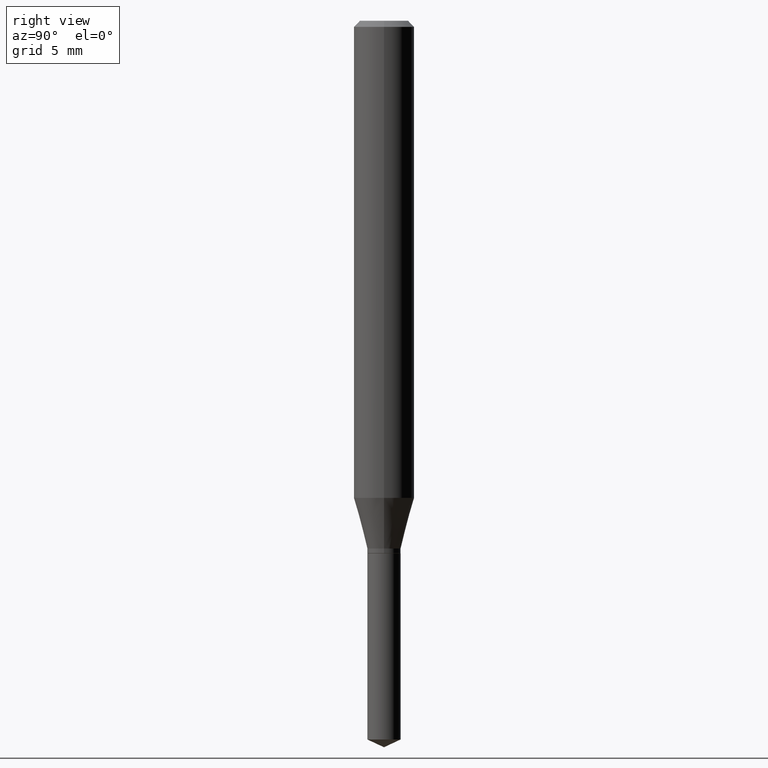
[diagram: clean part render]
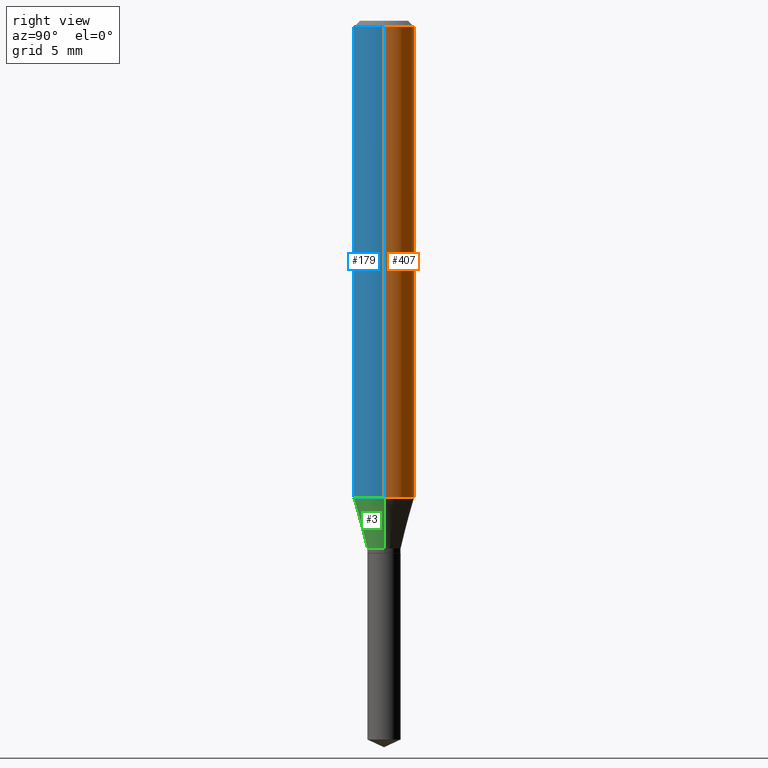
[diagram: same view with three faces highlighted in distinct colors, each labeled with its STEP entity id]
A machine part, right view with three faces highlighted in distinct colors.
Their STEP definitions:

[orange] entity #407 — the highlighted cylindrical surface (edge-blend (fillet) strip) has radius 1.5875 mm, axis along (-0, 0, 1).
#2 = DIRECTION ( 'NONE',  ( -2.445468806185136597E-29, 3.491481338843145583E-15, 1.000000000000000000 ) ) ;
#18 = CARTESIAN_POINT ( 'NONE',  ( 3.056836007731440977E-31, -4.364351673553961068E-17, -0.01250000000000008223 ) ) ;
#28 = VERTEX_POINT ( 'NONE', #96 ) ;
#50 = VECTOR ( 'NONE', #119, 39.37007874015748143 ) ;
#56 = LINE ( 'NONE', #89, #50 ) ;
#81 = EDGE_CURVE ( 'NONE', #372, #363, #314, .T. ) ;
#89 = CARTESIAN_POINT ( 'NONE',  ( 0.06250000000000005551, -4.364351673553921131E-16, 3.047610484872463023E-30 ) ) ;
#96 = CARTESIAN_POINT ( 'NONE',  ( -0.06250000000000000000, -1.297314995839260696E-15, -0.01250000000000008223 ) ) ;
#104 = ORIENTED_EDGE ( 'NONE', *, *, #330, .F. ) ;
#119 = DIRECTION ( 'NONE',  ( -2.445468806185136877E-29, 3.491481338843145188E-15, 1.000000000000000000 ) ) ;
#127 = CARTESIAN_POINT ( 'NONE',  ( -0.06250000000000005551, 4.440892098500630106E-16, -3.074334431409318916E-30 ) ) ;
#157 = ORIENTED_EDGE ( 'NONE', *, *, #316, .F. ) ;
#168 = DIRECTION ( 'NONE',  ( 1.000000000000000000, -6.982962677686264344E-15, 0.000000000000000000 ) ) ;
#177 = DIRECTION ( 'NONE',  ( 1.000000000000000000, -6.982962677686266711E-15, 0.000000000000000000 ) ) ;
#191 = CARTESIAN_POINT ( 'NONE',  ( -0.06250000000000012490, -2.995075684793045236E-15, -0.9850159748476928767 ) ) ;
#192 = CARTESIAN_POINT ( 'NONE',  ( 0.06250000000000012490, -3.875600061998501888E-15, -0.9850159748476928767 ) ) ;
#220 = ORIENTED_EDGE ( 'NONE', *, *, #445, .T. ) ;
#230 = LINE ( 'NONE', #127, #473 ) ;
#256 = CARTESIAN_POINT ( 'NONE',  ( 2.408825840084076168E-29, -3.439164894643109430E-15, -0.9850159748476928767 ) ) ;
#261 = AXIS2_PLACEMENT_3D ( 'NONE', #18, #318, #177 ) ;
#272 = DIRECTION ( 'NONE',  ( -2.445468806185136597E-29, 3.491481338843145583E-15, 1.000000000000000000 ) ) ;
#275 = DIRECTION ( 'NONE',  ( -2.445468806185136877E-29, 3.491481338843145188E-15, 1.000000000000000000 ) ) ;
#282 = CARTESIAN_POINT ( 'NONE',  ( 0.06250000000000000000, -4.800786840909312308E-16, -0.01250000000000008223 ) ) ;
#286 = AXIS2_PLACEMENT_3D ( 'NONE', #456, #272, #484 ) ;
#302 = FACE_OUTER_BOUND ( 'NONE', #450, .T. ) ;
#305 = CYLINDRICAL_SURFACE ( 'NONE', #286, 0.06250000000000005551 ) ;
#314 = CIRCLE ( 'NONE', #389, 0.06250000000000012490 ) ;
#316 = EDGE_CURVE ( 'NONE', #320, #28, #404, .T. ) ;
#318 = DIRECTION ( 'NONE',  ( -2.445468806185136597E-29, 3.491481338843145583E-15, 1.000000000000000000 ) ) ;
#320 = VERTEX_POINT ( 'NONE', #282 ) ;
#330 = EDGE_CURVE ( 'NONE', #372, #320, #56, .T. ) ;
#363 = VERTEX_POINT ( 'NONE', #191 ) ;
#372 = VERTEX_POINT ( 'NONE', #192 ) ;
#389 = AXIS2_PLACEMENT_3D ( 'NONE', #256, #2, #168 ) ;
#404 = CIRCLE ( 'NONE', #261, 0.06250000000000000000 ) ;
#407 = ADVANCED_FACE ( 'NONE', ( #302 ), #305, .T. ) ;
#445 = EDGE_CURVE ( 'NONE', #363, #28, #230, .T. ) ;
#450 = EDGE_LOOP ( 'NONE', ( #485, #220, #157, #104 ) ) ;
#456 = CARTESIAN_POINT ( 'NONE',  ( 0.000000000000000000, 0.000000000000000000, 0.000000000000000000 ) ) ;
#473 = VECTOR ( 'NONE', #275, 39.37007874015748143 ) ;
#484 = DIRECTION ( 'NONE',  ( 1.000000000000000000, -6.982962677686267499E-15, 4.876176775795936353E-29 ) ) ;
#485 = ORIENTED_EDGE ( 'NONE', *, *, #81, .T. ) ;

[blue] entity #179 — the highlighted cylindrical surface (edge-blend (fillet) strip) has radius 1.5875 mm, axis along (-0, 0, 1).
#26 = FACE_OUTER_BOUND ( 'NONE', #167, .T. ) ;
#28 = VERTEX_POINT ( 'NONE', #96 ) ;
#33 = DIRECTION ( 'NONE',  ( -2.445468806185136597E-29, 3.491481338843145583E-15, 1.000000000000000000 ) ) ;
#50 = VECTOR ( 'NONE', #119, 39.37007874015748143 ) ;
#52 = EDGE_CURVE ( 'NONE', #363, #372, #356, .T. ) ;
#56 = LINE ( 'NONE', #89, #50 ) ;
#65 = ORIENTED_EDGE ( 'NONE', *, *, #445, .F. ) ;
#89 = CARTESIAN_POINT ( 'NONE',  ( 0.06250000000000005551, -4.364351673553921131E-16, 3.047610484872463023E-30 ) ) ;
#96 = CARTESIAN_POINT ( 'NONE',  ( -0.06250000000000000000, -1.297314995839260696E-15, -0.01250000000000008223 ) ) ;
#119 = DIRECTION ( 'NONE',  ( -2.445468806185136877E-29, 3.491481338843145188E-15, 1.000000000000000000 ) ) ;
#125 = AXIS2_PLACEMENT_3D ( 'NONE', #284, #329, #182 ) ;
#127 = CARTESIAN_POINT ( 'NONE',  ( -0.06250000000000005551, 4.440892098500630106E-16, -3.074334431409318916E-30 ) ) ;
#150 = AXIS2_PLACEMENT_3D ( 'NONE', #259, #33, #299 ) ;
#152 = ORIENTED_EDGE ( 'NONE', *, *, #330, .T. ) ;
#167 = EDGE_LOOP ( 'NONE', ( #65, #298, #152, #227 ) ) ;
#179 = ADVANCED_FACE ( 'NONE', ( #26 ), #420, .T. ) ;
#182 = DIRECTION ( 'NONE',  ( 1.000000000000000000, -6.982962677686264344E-15, 0.000000000000000000 ) ) ;
#191 = CARTESIAN_POINT ( 'NONE',  ( -0.06250000000000012490, -2.995075684793045236E-15, -0.9850159748476928767 ) ) ;
#192 = CARTESIAN_POINT ( 'NONE',  ( 0.06250000000000012490, -3.875600061998501888E-15, -0.9850159748476928767 ) ) ;
#227 = ORIENTED_EDGE ( 'NONE', *, *, #371, .F. ) ;
#230 = LINE ( 'NONE', #127, #473 ) ;
#243 = CARTESIAN_POINT ( 'NONE',  ( 0.000000000000000000, 0.000000000000000000, 0.000000000000000000 ) ) ;
#259 = CARTESIAN_POINT ( 'NONE',  ( 3.056836007731440977E-31, -4.364351673553961068E-17, -0.01250000000000008223 ) ) ;
#275 = DIRECTION ( 'NONE',  ( -2.445468806185136877E-29, 3.491481338843145188E-15, 1.000000000000000000 ) ) ;
#282 = CARTESIAN_POINT ( 'NONE',  ( 0.06250000000000000000, -4.800786840909312308E-16, -0.01250000000000008223 ) ) ;
#284 = CARTESIAN_POINT ( 'NONE',  ( 2.408825840084076168E-29, -3.439164894643109430E-15, -0.9850159748476928767 ) ) ;
#298 = ORIENTED_EDGE ( 'NONE', *, *, #52, .T. ) ;
#299 = DIRECTION ( 'NONE',  ( 1.000000000000000000, -6.982962677686266711E-15, 0.000000000000000000 ) ) ;
#300 = AXIS2_PLACEMENT_3D ( 'NONE', #243, #465, #307 ) ;
#307 = DIRECTION ( 'NONE',  ( 1.000000000000000000, -6.982962677686267499E-15, 4.876176775795936353E-29 ) ) ;
#320 = VERTEX_POINT ( 'NONE', #282 ) ;
#329 = DIRECTION ( 'NONE',  ( -2.445468806185136597E-29, 3.491481338843145583E-15, 1.000000000000000000 ) ) ;
#330 = EDGE_CURVE ( 'NONE', #372, #320, #56, .T. ) ;
#356 = CIRCLE ( 'NONE', #125, 0.06250000000000012490 ) ;
#363 = VERTEX_POINT ( 'NONE', #191 ) ;
#371 = EDGE_CURVE ( 'NONE', #28, #320, #396, .T. ) ;
#372 = VERTEX_POINT ( 'NONE', #192 ) ;
#396 = CIRCLE ( 'NONE', #150, 0.06250000000000000000 ) ;
#420 = CYLINDRICAL_SURFACE ( 'NONE', #300, 0.06250000000000005551 ) ;
#445 = EDGE_CURVE ( 'NONE', #363, #28, #230, .T. ) ;
#465 = DIRECTION ( 'NONE',  ( -2.445468806185136597E-29, 3.491481338843145583E-15, 1.000000000000000000 ) ) ;
#473 = VECTOR ( 'NONE', #275, 39.37007874015748143 ) ;

[green] entity #3 — the highlighted conical surface has half-angle 15 deg.
#3 = ADVANCED_FACE ( 'NONE', ( #449 ), #380, .T. ) ;
#21 = CARTESIAN_POINT ( 'NONE',  ( 0.03445000000000000145, -4.045230279183668208E-15, -1.089700000000000113 ) ) ;
#24 = ORIENTED_EDGE ( 'NONE', *, *, #249, .F. ) ;
#37 = EDGE_LOOP ( 'NONE', ( #24, #338, #440, #195 ) ) ;
#52 = EDGE_CURVE ( 'NONE', #363, #372, #356, .T. ) ;
#66 = CARTESIAN_POINT ( 'NONE',  ( 0.03445000000000000145, -4.045230279183668208E-15, -1.089700000000000113 ) ) ;
#69 = EDGE_CURVE ( 'NONE', #75, #372, #100, .T. ) ;
#75 = VERTEX_POINT ( 'NONE', #66 ) ;
#86 = DIRECTION ( 'NONE',  ( -2.445468806185136597E-29, 3.491481338843145583E-15, 1.000000000000000000 ) ) ;
#94 = VECTOR ( 'NONE', #197, 39.37007874015748854 ) ;
#100 = LINE ( 'NONE', #21, #181 ) ;
#105 = DIRECTION ( 'NONE',  ( 0.2588190451025212391, 1.565188264969622362E-15, 0.9659258262890679791 ) ) ;
#114 = CARTESIAN_POINT ( 'NONE',  ( -0.03445000000000000145, -3.576993501028352698E-15, -1.089700000000000113 ) ) ;
#115 = CARTESIAN_POINT ( 'NONE',  ( 2.664827358099943591E-29, -3.804667214937376339E-15, -1.089700000000000113 ) ) ;
#122 = LINE ( 'NONE', #339, #94 ) ;
#125 = AXIS2_PLACEMENT_3D ( 'NONE', #284, #329, #182 ) ;
#129 = DIRECTION ( 'NONE',  ( 1.000000000000000000, -6.982962677686265922E-15, 0.000000000000000000 ) ) ;
#141 = CIRCLE ( 'NONE', #189, 0.03445000000000000145 ) ;
#173 = CARTESIAN_POINT ( 'NONE',  ( 2.664827358099943591E-29, -3.804667214937376339E-15, -1.089700000000000113 ) ) ;
#181 = VECTOR ( 'NONE', #105, 39.37007874015748854 ) ;
#182 = DIRECTION ( 'NONE',  ( 1.000000000000000000, -6.982962677686264344E-15, 0.000000000000000000 ) ) ;
#188 = EDGE_CURVE ( 'NONE', #415, #75, #141, .T. ) ;
#189 = AXIS2_PLACEMENT_3D ( 'NONE', #173, #86, #129 ) ;
#191 = CARTESIAN_POINT ( 'NONE',  ( -0.06250000000000012490, -2.995075684793045236E-15, -0.9850159748476928767 ) ) ;
#192 = CARTESIAN_POINT ( 'NONE',  ( 0.06250000000000012490, -3.875600061998501888E-15, -0.9850159748476928767 ) ) ;
#195 = ORIENTED_EDGE ( 'NONE', *, *, #52, .F. ) ;
#197 = DIRECTION ( 'NONE',  ( -0.2588190451025212391, 5.211531920934549464E-15, 0.9659258262890679791 ) ) ;
#249 = EDGE_CURVE ( 'NONE', #415, #363, #122, .T. ) ;
#266 = DIRECTION ( 'NONE',  ( -2.445468806185136597E-29, 3.491481338843145583E-15, 1.000000000000000000 ) ) ;
#284 = CARTESIAN_POINT ( 'NONE',  ( 2.408825840084076168E-29, -3.439164894643109430E-15, -0.9850159748476928767 ) ) ;
#329 = DIRECTION ( 'NONE',  ( -2.445468806185136597E-29, 3.491481338843145583E-15, 1.000000000000000000 ) ) ;
#338 = ORIENTED_EDGE ( 'NONE', *, *, #188, .T. ) ;
#339 = CARTESIAN_POINT ( 'NONE',  ( -0.03445000000000000145, -3.559885242468021174E-15, -1.089700000000000113 ) ) ;
#356 = CIRCLE ( 'NONE', #125, 0.06250000000000012490 ) ;
#363 = VERTEX_POINT ( 'NONE', #191 ) ;
#372 = VERTEX_POINT ( 'NONE', #192 ) ;
#380 = CONICAL_SURFACE ( 'NONE', #441, 0.03445000000000000145, 0.2617993877991499629 ) ;
#406 = DIRECTION ( 'NONE',  ( 1.000000000000000000, -6.982962677686265922E-15, 0.000000000000000000 ) ) ;
#415 = VERTEX_POINT ( 'NONE', #114 ) ;
#440 = ORIENTED_EDGE ( 'NONE', *, *, #69, .T. ) ;
#441 = AXIS2_PLACEMENT_3D ( 'NONE', #115, #266, #406 ) ;
#449 = FACE_OUTER_BOUND ( 'NONE', #37, .T. ) ;